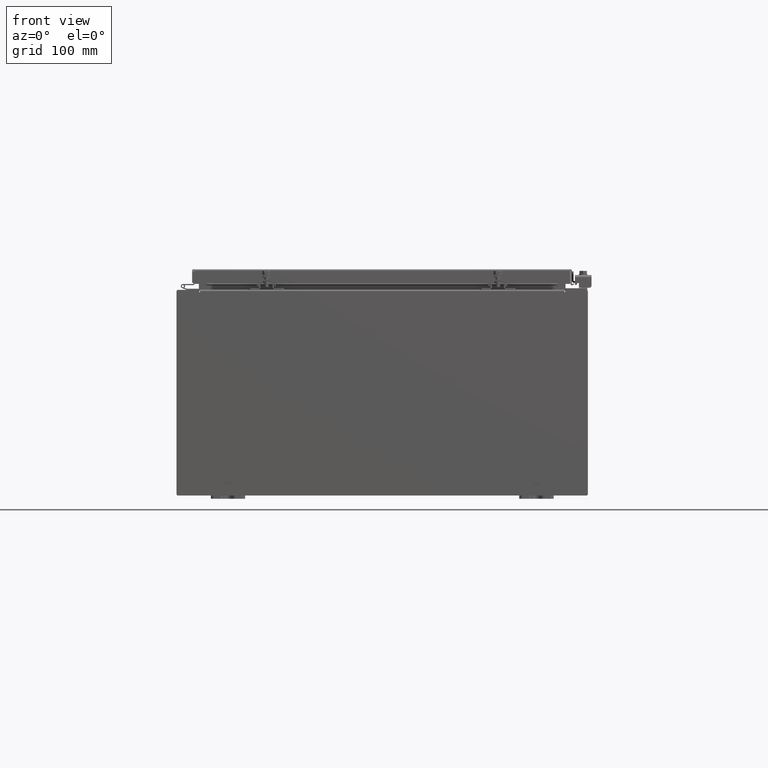
[diagram: clean part render]
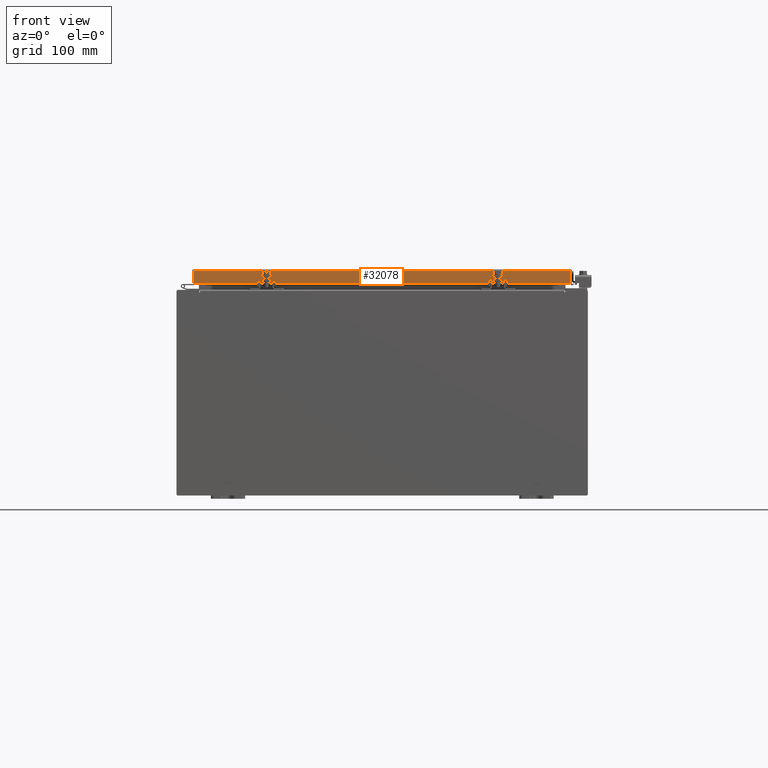
[diagram: same view with one face highlighted and labeled with its STEP entity id]
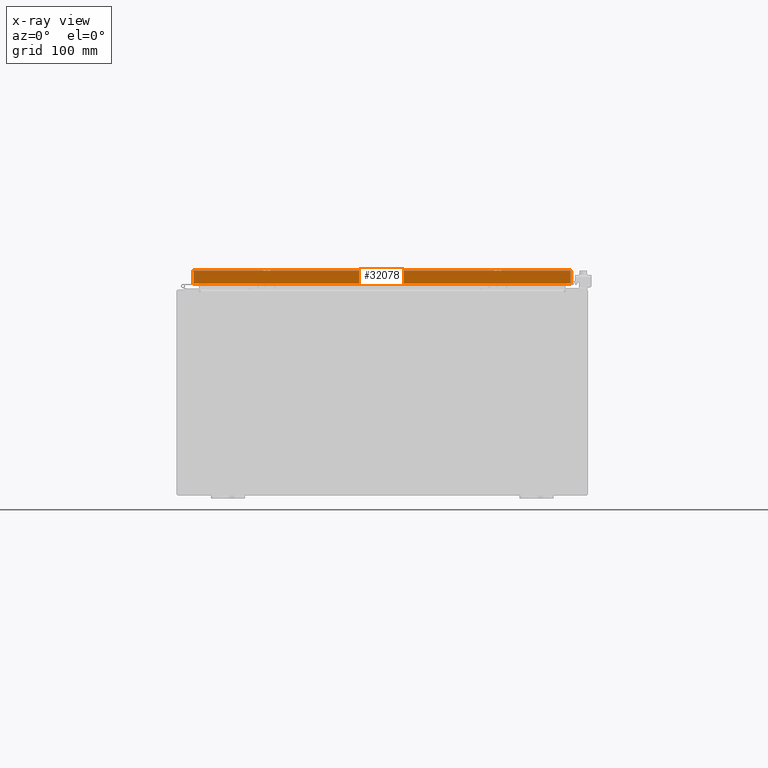
[diagram: x-ray of the same camera — body ghosted, the highlighted face saturated]
A machine part, front view. The second image highlights one B-rep face of the part: STEP entity #32078.
The next image is the same camera in x-ray: the body ghosted, the highlighted face saturated — about 0% of this face is hidden behind the body in this view.
In plain terms, the highlighted planar face has unit normal (0, 1, -0).
Its self-contained STEP definition (entity closure, byte-faithful):
#889 = VECTOR ( 'NONE', #6500, 39.37007874015748100 ) ;
#1752 = CARTESIAN_POINT ( 'NONE',  ( -10.98915786437626700, -14.09399999999999900, -0.08770000000000224800 ) ) ;
#4749 = VERTEX_POINT ( 'NONE', #23568 ) ;
#6407 = DIRECTION ( 'NONE',  ( 9.864047639155998000E-017, 1.000000000000000000, -2.818880942772360100E-015 ) ) ;
#6500 = DIRECTION ( 'NONE',  ( 1.000000000000000000, -9.864047639155999200E-017, -9.196021172131615100E-046 ) ) ;
#6742 = ORIENTED_EDGE ( 'NONE', *, *, #25047, .F. ) ;
#7489 = LINE ( 'NONE', #9062, #29540 ) ;
#8002 = LINE ( 'NONE', #31221, #22453 ) ;
#8612 = EDGE_LOOP ( 'NONE', ( #21644, #33282, #6742, #16711, #16563, #12492 ) ) ;
#9062 = CARTESIAN_POINT ( 'NONE',  ( 11.07799999999999900, -14.09400000000000300, -0.8499999999999996400 ) ) ;
#9451 = LINE ( 'NONE', #17600, #16247 ) ;
#9527 = DIRECTION ( 'NONE',  ( 0.0000000000000000000, -2.818880942772360100E-015, -1.000000000000000000 ) ) ;
#11608 = LINE ( 'NONE', #21019, #26008 ) ;
#11757 = CARTESIAN_POINT ( 'NONE',  ( 10.98915786437624400, -14.09400000000000100, -0.08770000000000224800 ) ) ;
#11984 = DIRECTION ( 'NONE',  ( -1.000000000000000000, 9.864047639156033700E-017, 1.233005954894504400E-016 ) ) ;
#12492 = ORIENTED_EDGE ( 'NONE', *, *, #24326, .F. ) ;
#13104 = CARTESIAN_POINT ( 'NONE',  ( 10.23915786437626700, -14.09399999999999900, -0.8500000000000012000 ) ) ;
#13144 = VERTEX_POINT ( 'NONE', #13104 ) ;
#13363 = AXIS2_PLACEMENT_3D ( 'NONE', #23533, #6407, #26556 ) ;
#14473 = CARTESIAN_POINT ( 'NONE',  ( -10.23915786437626700, -14.09399999999999900, -0.8500000000000012000 ) ) ;
#15366 = LINE ( 'NONE', #25607, #21186 ) ;
#16247 = VECTOR ( 'NONE', #34746, 39.37007874015748100 ) ;
#16563 = ORIENTED_EDGE ( 'NONE', *, *, #20137, .F. ) ;
#16711 = ORIENTED_EDGE ( 'NONE', *, *, #23130, .F. ) ;
#17255 = FACE_OUTER_BOUND ( 'NONE', #8612, .T. ) ;
#17600 = CARTESIAN_POINT ( 'NONE',  ( 11.07799999999999900, -14.09400000000000300, -0.8499999999999996400 ) ) ;
#20108 = VERTEX_POINT ( 'NONE', #11757 ) ;
#20137 = EDGE_CURVE ( 'NONE', #33215, #13144, #9451, .T. ) ;
#20799 = PLANE ( 'NONE',  #13363 ) ;
#21019 = CARTESIAN_POINT ( 'NONE',  ( -10.98915786437626900, -14.09399999999999900, 3.999012166344521600E-014 ) ) ;
#21186 = VECTOR ( 'NONE', #28484, 39.37007874015748100 ) ;
#21644 = ORIENTED_EDGE ( 'NONE', *, *, #27959, .F. ) ;
#22453 = VECTOR ( 'NONE', #25581, 39.37007874015748100 ) ;
#22708 = EDGE_CURVE ( 'NONE', #24847, #4749, #11608, .T. ) ;
#23130 = EDGE_CURVE ( 'NONE', #13144, #28519, #15366, .T. ) ;
#23533 = CARTESIAN_POINT ( 'NONE',  ( -1.390238874262646300E-015, -14.09399999999999900, 3.999012166344521600E-014 ) ) ;
#23568 = CARTESIAN_POINT ( 'NONE',  ( -10.98915786437626700, -14.09400000000000100, -0.8499999999999969800 ) ) ;
#23894 = CARTESIAN_POINT ( 'NONE',  ( 10.98915786437626900, -14.09400000000000300, -0.8499999999999996400 ) ) ;
#24009 = LINE ( 'NONE', #26635, #889 ) ;
#24326 = EDGE_CURVE ( 'NONE', #20108, #33215, #8002, .T. ) ;
#24847 = VERTEX_POINT ( 'NONE', #1752 ) ;
#25047 = EDGE_CURVE ( 'NONE', #28519, #4749, #7489, .T. ) ;
#25581 = DIRECTION ( 'NONE',  ( 0.0000000000000000000, -2.818880942772360100E-015, -1.000000000000000000 ) ) ;
#25607 = CARTESIAN_POINT ( 'NONE',  ( 10.23915786437626700, -14.09399999999999900, -0.8500000000000012000 ) ) ;
#26008 = VECTOR ( 'NONE', #9527, 39.37007874015748100 ) ;
#26556 = DIRECTION ( 'NONE',  ( 0.0000000000000000000, 2.818880942772360100E-015, 1.000000000000000000 ) ) ;
#26635 = CARTESIAN_POINT ( 'NONE',  ( 11.07799999999999900, -14.09400000000000100, -0.08770000000000224800 ) ) ;
#27959 = EDGE_CURVE ( 'NONE', #24847, #20108, #24009, .T. ) ;
#28484 = DIRECTION ( 'NONE',  ( -1.000000000000000000, 0.0000000000000000000, 0.0000000000000000000 ) ) ;
#28519 = VERTEX_POINT ( 'NONE', #14473 ) ;
#29540 = VECTOR ( 'NONE', #11984, 39.37007874015748100 ) ;
#31221 = CARTESIAN_POINT ( 'NONE',  ( 10.98915786437626900, -14.09400000000000100, -0.07469999999999978000 ) ) ;
#32078 = ADVANCED_FACE ( 'NONE', ( #17255 ), #20799, .F. ) ;
#33215 = VERTEX_POINT ( 'NONE', #23894 ) ;
#33282 = ORIENTED_EDGE ( 'NONE', *, *, #22708, .T. ) ;
#34746 = DIRECTION ( 'NONE',  ( -1.000000000000000000, 9.864047639156033700E-017, 1.233005954894504400E-016 ) ) ;